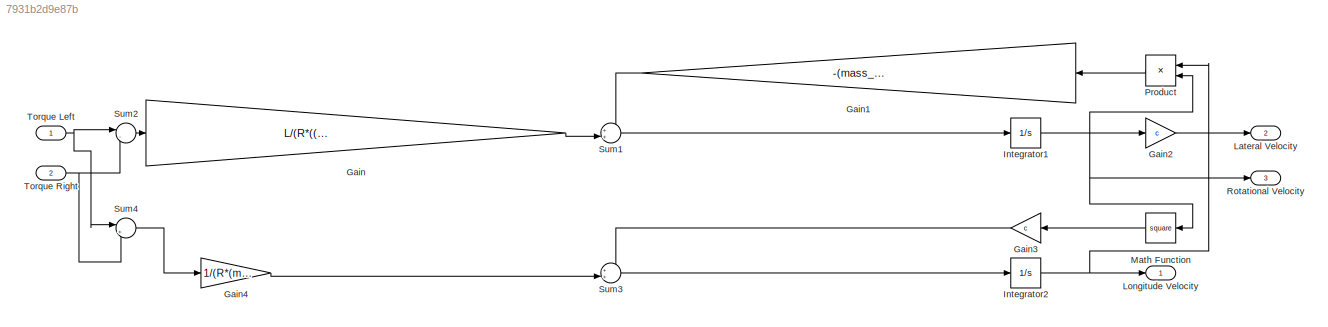
MODEL slx_7931b2d9e87b
KIND model
CONFIG AbsTol = auto
CONFIG EnableMultiTasking = off
CONFIG FixedStep = auto
CONFIG MaxStep = auto
CONFIG MinStep = auto
CONFIG RelTol = 1e-3
CONFIG SampleTimeConstraint = Unconstrained
CONFIG SolverName = FixedStepAuto
CONFIG StartTime = 0.0
CONFIG StopTime = 10.0
BLOCK [Gain] Gain
  Gain = L/(R*((mass_payload+mass_robot)*c^2 + (mass_payload+mass_robot)*(L^2)/2))
BLOCK [Gain] Gain1
  Gain = -(mass_payload+mass_robot)*c/((mass_payload+mass_robot)*c^2 + (mass_payload+mass_robot)*(L^2)/2)
  NameLocation = top
BLOCK [Gain] Gain2
  Gain = c
BLOCK [Gain] Gain3
  Gain = c
  NameLocation = top
BLOCK [Gain] Gain4
  Gain = 1/(R*(mass_payload+mass_robot))
BLOCK [Integrator] Integrator1
BLOCK [Integrator] Integrator2
BLOCK [Outport] Lateral Velocity
  Port = 2
BLOCK [Outport] Longitude Velocity
BLOCK [Math] Math Function
  NameLocation = top
  Operator = square
BLOCK [Product] Product
  NameLocation = top
BLOCK [Outport] Rotational Velocity
  Port = 3
BLOCK [Sum] Sum1
  Inputs = ++|
BLOCK [Sum] Sum2
  Inputs = |-+
BLOCK [Sum] Sum3
  Inputs = ++|
BLOCK [Sum] Sum4
  Inputs = |++
BLOCK [Inport] Torque Left
BLOCK [Inport] Torque Right
  Port = 2
LINE Gain1:1 -> Sum1:1
LINE Gain2:1 -> Lateral Velocity:1
LINE Gain3:1 -> Sum3:1
LINE Gain4:1 -> Sum3:2
LINE Gain:1 -> Sum1:2
NET Integrator1:1 -> Gain2:1, Math Function:1, Product:2, Rotational Velocity:1
NET Integrator2:1 -> Longitude Velocity:1, Product:1
LINE Math Function:1 -> Gain3:1
LINE Product:1 -> Gain1:1
LINE Sum1:1 -> Integrator1:1
LINE Sum2:1 -> Gain:1
LINE Sum3:1 -> Integrator2:1
LINE Sum4:1 -> Gain4:1
NET Torque Left:1 -> Sum2:1, Sum4:1
NET Torque Right:1 -> Sum2:2, Sum4:2
note: NET lines group one-source signal fan-out (src -> all destinations, sorted); 1:1 wires keep LINE
